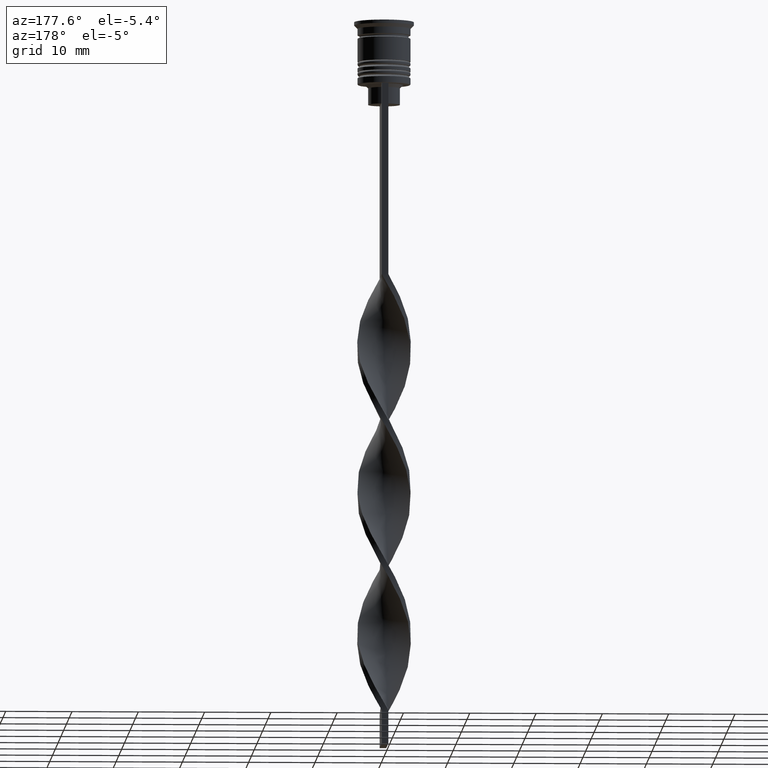
[diagram: clean part render]
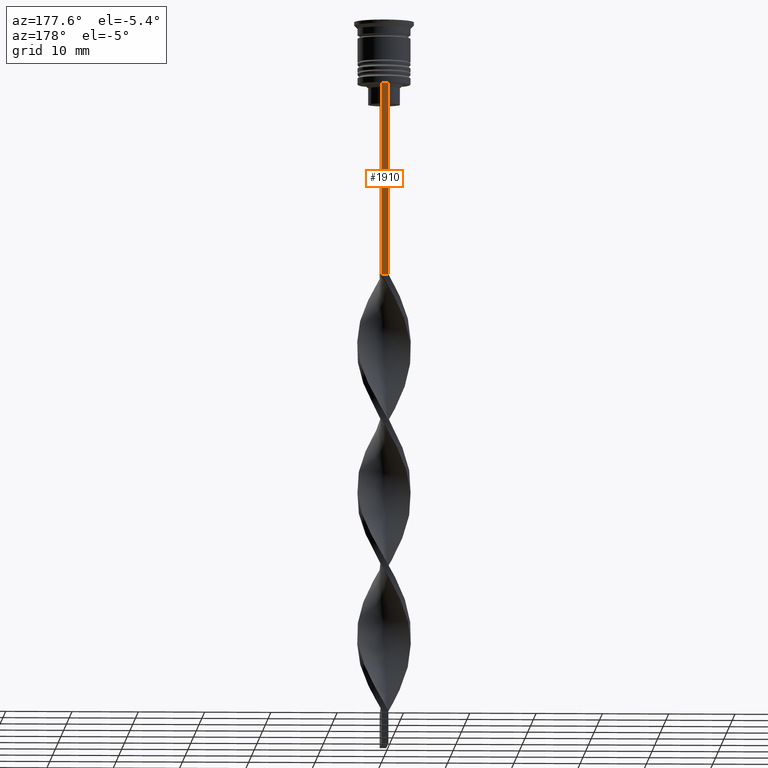
[diagram: same view with one face highlighted and labeled with its STEP entity id]
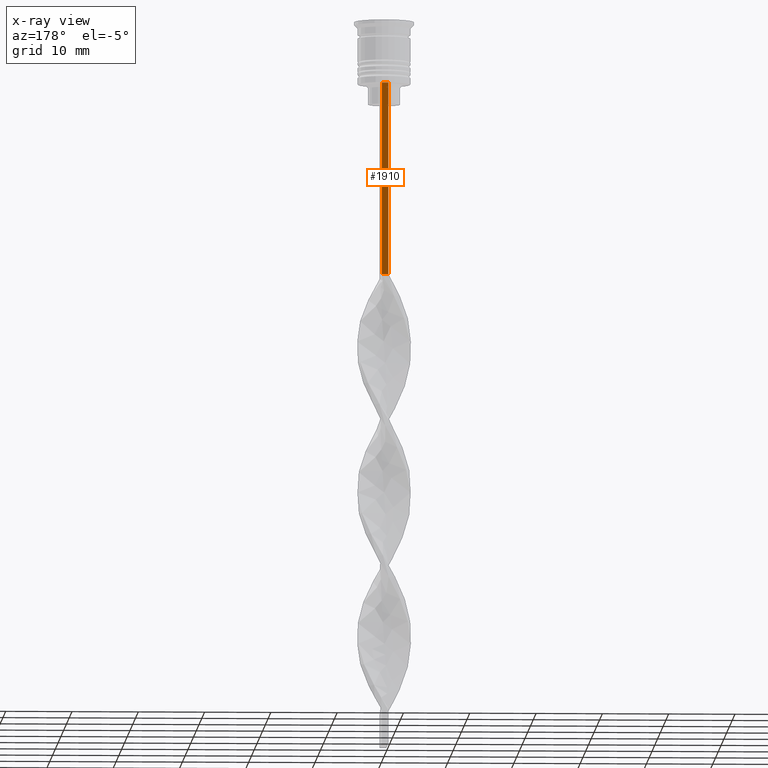
[diagram: x-ray of the same camera — body ghosted, the highlighted face saturated]
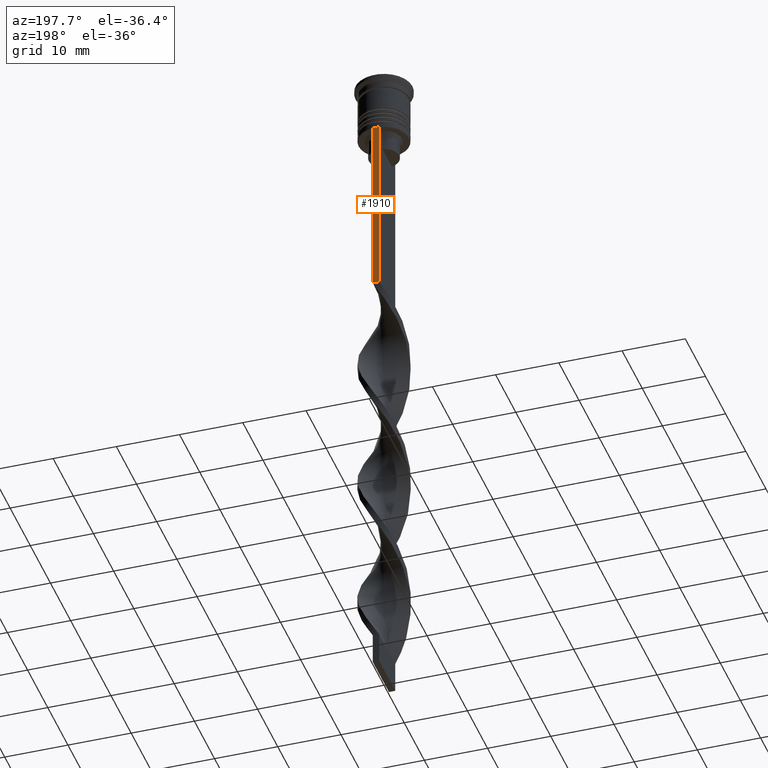
[diagram: same view with one face highlighted and labeled with its STEP entity id]
A machine part, auxiliary view. The second image highlights one B-rep face of the part: STEP entity #1910.
The next image is the same camera in x-ray: the body ghosted, the highlighted face saturated — about 0% of this face is hidden behind the body in this view.
A second angle (auxiliary view) of the same face is appended — the face is thin or edge-on in the first view.
In plain terms, the highlighted planar face has unit normal (0, -1, -0).
Its self-contained STEP definition (entity closure, byte-faithful):
#5 = LINE ( 'NONE', #549, #3233 ) ;
#6 = PLANE ( 'NONE',  #2825 ) ;
#147 = DIRECTION ( 'NONE',  ( 1.000000000000000000, 0.000000000000000000, 0.000000000000000000 ) ) ;
#312 = DIRECTION ( 'NONE',  ( 0.000000000000000000, 0.000000000000000000, -1.000000000000000000 ) ) ;
#537 = CARTESIAN_POINT ( 'NONE',  ( -0.5000000000000000000, 4.000000000000000000, -38.50000000000000000 ) ) ;
#549 = CARTESIAN_POINT ( 'NONE',  ( -0.5000000000000000000, 4.000000000000000000, -1.437742251701450202 ) ) ;
#637 = ORIENTED_EDGE ( 'NONE', *, *, #2736, .T. ) ;
#717 = ORIENTED_EDGE ( 'NONE', *, *, #1031, .F. ) ;
#825 = LINE ( 'NONE', #1075, #3410 ) ;
#861 = DIRECTION ( 'NONE',  ( -1.000000000000000000, 0.000000000000000000, 0.000000000000000000 ) ) ;
#895 = EDGE_CURVE ( 'NONE', #2528, #1973, #1702, .T. ) ;
#1031 = EDGE_CURVE ( 'NONE', #1605, #1973, #5, .T. ) ;
#1075 = CARTESIAN_POINT ( 'NONE',  ( 0.5000000000000000000, 4.000000000000000000, -1.437742251701450202 ) ) ;
#1133 = CARTESIAN_POINT ( 'NONE',  ( 0.5000000000000000000, 4.000000000000000000, -1.437742251701450202 ) ) ;
#1464 = FACE_OUTER_BOUND ( 'NONE', #3606, .T. ) ;
#1529 = VECTOR ( 'NONE', #861, 1000.000000000000000 ) ;
#1605 = VERTEX_POINT ( 'NONE', #3491 ) ;
#1663 = DIRECTION ( 'NONE',  ( 0.000000000000000000, 0.000000000000000000, -1.000000000000000000 ) ) ;
#1685 = DIRECTION ( 'NONE',  ( 0.000000000000000000, 0.000000000000000000, -1.000000000000000000 ) ) ;
#1702 = LINE ( 'NONE', #3073, #1529 ) ;
#1723 = DIRECTION ( 'NONE',  ( 0.000000000000000000, -1.000000000000000000, -0.000000000000000000 ) ) ;
#1775 = CARTESIAN_POINT ( 'NONE',  ( 0.5000000000000000000, 4.000000000000000000, -9.500000000000000000 ) ) ;
#1910 = ADVANCED_FACE ( 'NONE', ( #1464 ), #6, .F. ) ;
#1973 = VERTEX_POINT ( 'NONE', #537 ) ;
#2294 = ORIENTED_EDGE ( 'NONE', *, *, #895, .T. ) ;
#2482 = CARTESIAN_POINT ( 'NONE',  ( 0.5000000000000000000, 4.000000000000000000, -38.50000000000000000 ) ) ;
#2528 = VERTEX_POINT ( 'NONE', #2482 ) ;
#2656 = VECTOR ( 'NONE', #147, 1000.000000000000000 ) ;
#2736 = EDGE_CURVE ( 'NONE', #1605, #3518, #2966, .T. ) ;
#2825 = AXIS2_PLACEMENT_3D ( 'NONE', #1133, #1723, #312 ) ;
#2966 = LINE ( 'NONE', #3546, #2656 ) ;
#3073 = CARTESIAN_POINT ( 'NONE',  ( 0.5000000000000000000, 4.000000000000000000, -38.50000000000000000 ) ) ;
#3233 = VECTOR ( 'NONE', #1685, 1000.000000000000000 ) ;
#3279 = ORIENTED_EDGE ( 'NONE', *, *, #3354, .T. ) ;
#3354 = EDGE_CURVE ( 'NONE', #3518, #2528, #825, .T. ) ;
#3410 = VECTOR ( 'NONE', #1663, 1000.000000000000000 ) ;
#3491 = CARTESIAN_POINT ( 'NONE',  ( -0.5000000000000000000, 4.000000000000000000, -9.500000000000000000 ) ) ;
#3518 = VERTEX_POINT ( 'NONE', #1775 ) ;
#3546 = CARTESIAN_POINT ( 'NONE',  ( 0.5000000000000000000, 4.000000000000000000, -9.500000000000000000 ) ) ;
#3606 = EDGE_LOOP ( 'NONE', ( #717, #637, #3279, #2294 ) ) ;